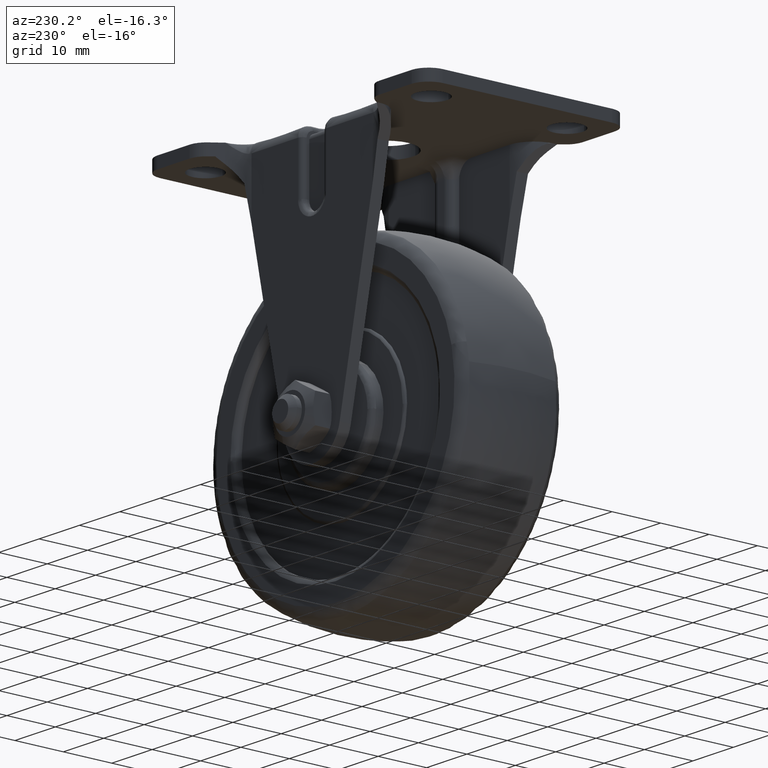
[diagram: clean part render]
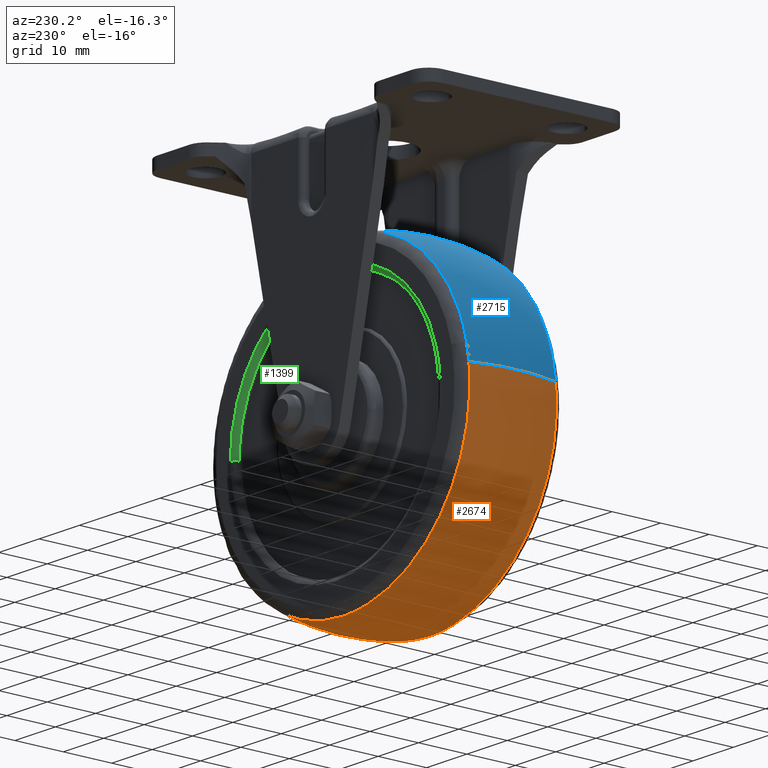
[diagram: same view with three faces highlighted in distinct colors, each labeled with its STEP entity id]
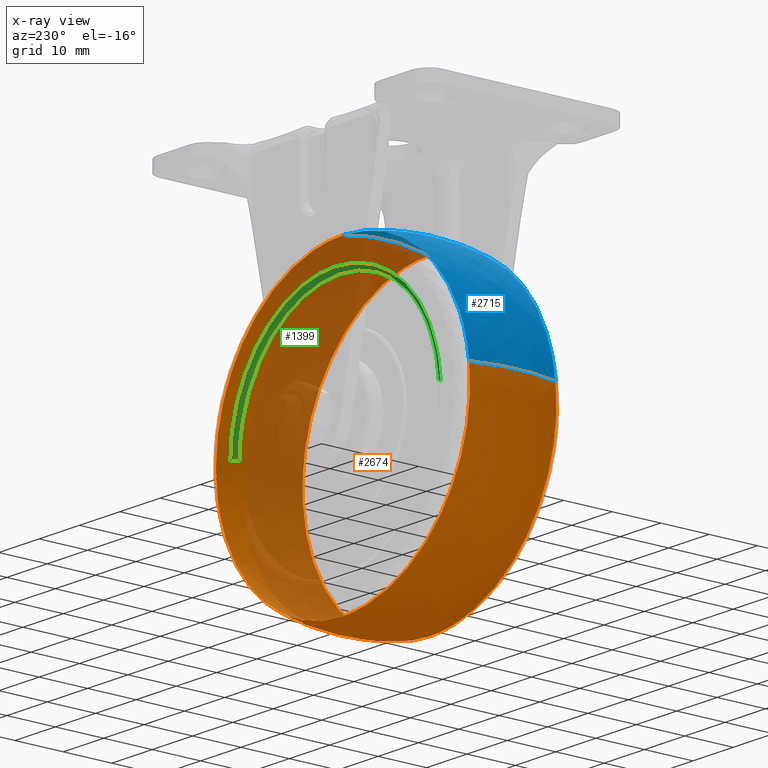
[diagram: x-ray of the same camera — body ghosted, the three highlighted faces saturated]
A machine part, auxiliary view with three faces highlighted in distinct colors.
The next image is the same camera in x-ray (body ghosted, the three faces saturated) — at least one of them is partly hidden behind the body in this view.
Their STEP definitions:

[orange] entity #2674 — the highlighted face is a freeform B-spline surface patch.
#2006=CARTESIAN_POINT('',(9.808425974833607,-8.947369585069662,-29.919763386978222));
#2007=VERTEX_POINT('',#2006);
#2021=CARTESIAN_POINT('',(30.852173017537851,-8.947359003391426,6.288161557330739));
#2022=VERTEX_POINT('',#2021);
#2023=CARTESIAN_POINT('',(9.808425974833607,-8.947369585069662,-29.919763386978222));
#2024=CARTESIAN_POINT('',(31.486465838998317,-8.947367550910025,-22.813174969325587));
#2025=CARTESIAN_POINT('',(31.486465751318740,-8.947360851532991,0.000002213941565));
#2026=CARTESIAN_POINT('',(31.486465739111917,-8.947359918839849,3.176072741140281));
#2027=CARTESIAN_POINT('',(30.852173017537854,-8.947359003391426,6.288161557330739));
#2035=(BOUNDED_CURVE()B_SPLINE_CURVE(2,(#2023,#2024,#2025,#2026,#2027),.UNSPECIFIED.,.F.,.U.)B_SPLINE_CURVE_WITH_KNOTS((3,2,3),(0.052968605850543,0.250000000000000,0.284232948269317),.UNSPECIFIED.)CURVE()GEOMETRIC_REPRESENTATION_ITEM()RATIONAL_B_SPLINE_CURVE((0.902183241288454,0.769163363041054,1.0,0.959893606367701,0.930770893523269))REPRESENTATION_ITEM(''));
#2036=EDGE_CURVE('',#2007,#2022,#2035,.T.);
#2135=CARTESIAN_POINT('',(0.0,-8.947351655797672,31.486470709043729));
#2136=VERTEX_POINT('',#2135);
#2137=CARTESIAN_POINT('',(30.852173017537858,-8.947359003391426,6.288161557330739));
#2138=CARTESIAN_POINT('',(25.716361636839114,-8.947351655797672,31.486470709043733));
#2139=CARTESIAN_POINT('',(0.0,-8.947351655797672,31.486470709043729));
#2147=(BOUNDED_CURVE()B_SPLINE_CURVE(2,(#2137,#2138,#2139),.UNSPECIFIED.,.F.,.U.)B_SPLINE_CURVE_WITH_KNOTS((3,3),(0.284232948269317,0.500000000000000),.UNSPECIFIED.)CURVE()GEOMETRIC_REPRESENTATION_ITEM()RATIONAL_B_SPLINE_CURVE((0.930770893523269,0.747213174818846,1.0))REPRESENTATION_ITEM(''));
#2148=EDGE_CURVE('',#2022,#2136,#2147,.T.);
#2150=CARTESIAN_POINT('',(-31.275877054222850,-8.947368700235634,3.635533780612191));
#2151=VERTEX_POINT('',#2150);
#2165=CARTESIAN_POINT('',(0.0,-8.947370412398071,-31.486466404424799));
#2166=VERTEX_POINT('',#2165);
#2167=CARTESIAN_POINT('',(-31.275877054222853,-8.947368700235634,3.635533780612191));
#2168=CARTESIAN_POINT('',(-31.486466784659083,-8.947368744394128,1.823866159143446));
#2169=CARTESIAN_POINT('',(-31.486466773354930,-8.947368793982973,0.000000042884754));
#2170=CARTESIAN_POINT('',(-31.486466578204652,-8.947369650064191,-31.486466384224485));
#2171=CARTESIAN_POINT('',(0.0,-8.947370412398071,-31.486466404424799));
#2179=(BOUNDED_CURVE()B_SPLINE_CURVE(2,(#2167,#2168,#2169,#2170,#2171),.UNSPECIFIED.,.F.,.U.)B_SPLINE_CURVE_WITH_KNOTS((3,2,3),(0.730000145176667,0.750000000000000,1.0),.UNSPECIFIED.)CURVE()GEOMETRIC_REPRESENTATION_ITEM()RATIONAL_B_SPLINE_CURVE((0.956886403933733,0.976568712579969,1.0,0.707106781186548,1.0))REPRESENTATION_ITEM(''));
#2180=EDGE_CURVE('',#2151,#2166,#2179,.T.);
#2182=CARTESIAN_POINT('',(0.0,-8.947370412398071,-31.486466404424799));
#2183=CARTESIAN_POINT('',(5.029337712449757,-8.947370232056272,-31.486465657545949));
#2184=CARTESIAN_POINT('',(9.808425974833607,-8.947369585069662,-29.919763386978222));
#2192=(BOUNDED_CURVE()B_SPLINE_CURVE(2,(#2182,#2183,#2184),.UNSPECIFIED.,.F.,.U.)B_SPLINE_CURVE_WITH_KNOTS((3,3),(0.0,0.052968605850543),.UNSPECIFIED.)CURVE()GEOMETRIC_REPRESENTATION_ITEM()RATIONAL_B_SPLINE_CURVE((1.0,0.937943418145494,0.902183241288454))REPRESENTATION_ITEM(''));
#2193=EDGE_CURVE('',#2166,#2007,#2192,.T.);
#2222=CARTESIAN_POINT('',(31.038043515660888,8.947361144938633,-5.295023278542990));
#2223=VERTEX_POINT('',#2222);
#2224=CARTESIAN_POINT('',(0.0,8.947351224468196,31.486469048851610));
#2225=VERTEX_POINT('',#2224);
#2226=CARTESIAN_POINT('',(31.038043515660885,8.947361144938633,-5.295023278542990));
#2227=CARTESIAN_POINT('',(31.486463476382202,8.947360235891900,-2.666497923863992));
#2228=CARTESIAN_POINT('',(31.486463476382202,8.947359532322933,0.000002786234707));
#2229=CARTESIAN_POINT('',(31.486463476382205,8.947351224468196,31.486469048851603));
#2230=CARTESIAN_POINT('',(0.0,8.947351224468196,31.486469048851610));
#2238=(BOUNDED_CURVE()B_SPLINE_CURVE(2,(#2226,#2227,#2228,#2229,#2230),.UNSPECIFIED.,.F.,.U.)B_SPLINE_CURVE_WITH_KNOTS((3,2,3),(0.221073261911112,0.250000000000000,0.500000000000000),.UNSPECIFIED.)CURVE()GEOMETRIC_REPRESENTATION_ITEM()RATIONAL_B_SPLINE_CURVE((0.940063003287337,0.966110218285488,1.0,0.707106781186547,1.0))REPRESENTATION_ITEM(''));
#2239=EDGE_CURVE('',#2223,#2225,#2238,.T.);
#2348=CARTESIAN_POINT('',(0.0,8.947367840177670,-31.486463476382202));
#2349=VERTEX_POINT('',#2348);
#2350=CARTESIAN_POINT('',(0.0,8.947367840177670,-31.486463476382202));
#2351=CARTESIAN_POINT('',(26.569837797251992,8.947367840177670,-31.486463476382195));
#2352=CARTESIAN_POINT('',(31.038043515660888,8.947361144938633,-5.295023278542990));
#2360=(BOUNDED_CURVE()B_SPLINE_CURVE(2,(#2350,#2351,#2352),.UNSPECIFIED.,.F.,.U.)B_SPLINE_CURVE_WITH_KNOTS((3,3),(0.0,0.221073261911112),.UNSPECIFIED.)CURVE()GEOMETRIC_REPRESENTATION_ITEM()RATIONAL_B_SPLINE_CURVE((1.0,0.740996562901060,0.940063003287338))REPRESENTATION_ITEM(''));
#2361=EDGE_CURVE('',#2349,#2223,#2360,.T.);
#2363=CARTESIAN_POINT('',(-31.275875446010719,8.947368092683924,3.635533587529015));
#2364=VERTEX_POINT('',#2363);
#2365=CARTESIAN_POINT('',(-31.275875446010723,8.947368092683924,3.635533587529014));
#2366=CARTESIAN_POINT('',(-31.486465122642279,8.947368086171521,1.823866133637960));
#2367=CARTESIAN_POINT('',(-31.486465073699868,8.947368078858260,0.000000185673524));
#2368=CARTESIAN_POINT('',(-31.486464228778395,8.947367952605129,-31.486463388923038));
#2369=CARTESIAN_POINT('',(0.0,8.947367840177670,-31.486463476382202));
#2377=(BOUNDED_CURVE()B_SPLINE_CURVE(2,(#2365,#2366,#2367,#2368,#2369),.UNSPECIFIED.,.F.,.U.)B_SPLINE_CURVE_WITH_KNOTS((3,2,3),(0.730000145209450,0.750000000000000,1.0),.UNSPECIFIED.)CURVE()GEOMETRIC_REPRESENTATION_ITEM()RATIONAL_B_SPLINE_CURVE((0.956886403998258,0.976568712618376,1.0,0.707106781186547,1.0))REPRESENTATION_ITEM(''));
#2378=EDGE_CURVE('',#2364,#2349,#2377,.T.);
#2582=CARTESIAN_POINT('',(-31.058100660806520,-9.854040007855046,3.610245511994428));
#2583=CARTESIAN_POINT('',(-32.282628353075232,-5.004131983858719,3.752586656857317));
#2584=CARTESIAN_POINT('',(-32.282628353075225,-1.377682E-015,3.752586656857317));
#2585=CARTESIAN_POINT('',(-32.282628353075232,5.004131983858716,3.752586656857317));
#2586=CARTESIAN_POINT('',(-31.058100660806520,9.854040007855041,3.610245511994428));
#2587=CARTESIAN_POINT('',(-31.267227080661733,-9.854040007855044,1.811179665331520));
#2588=CARTESIAN_POINT('',(-32.499999999999986,-5.004131983858717,1.882589043519001));
#2589=CARTESIAN_POINT('',(-32.500000000000000,-1.377682E-015,1.882589043519001));
#2590=CARTESIAN_POINT('',(-32.499999999999986,5.004131983858712,1.882589043519001));
#2591=CARTESIAN_POINT('',(-31.267227080661733,9.854040007855039,1.811179665331520));
#2592=CARTESIAN_POINT('',(-31.267227080661733,-9.854040007855046,8.673617E-016));
#2593=CARTESIAN_POINT('',(-32.500000000000000,-5.004131983858718,8.673617E-016));
#2594=CARTESIAN_POINT('',(-32.500000000000000,-1.377682E-015,8.673617E-016));
#2595=CARTESIAN_POINT('',(-32.500000000000000,5.004131983858713,8.673617E-016));
#2596=CARTESIAN_POINT('',(-31.267227080661733,9.854040007855039,8.673617E-016));
#2597=CARTESIAN_POINT('',(-31.267227080661723,-9.854040007855046,-31.267227080661723));
#2598=CARTESIAN_POINT('',(-32.500000000000007,-5.004131983858719,-32.500000000000007));
#2599=CARTESIAN_POINT('',(-32.500000000000007,-1.377682E-015,-32.500000000000007));
#2600=CARTESIAN_POINT('',(-32.500000000000007,5.004131983858713,-32.500000000000007));
#2601=CARTESIAN_POINT('',(-31.267227080661723,9.854040007855037,-31.267227080661723));
#2602=CARTESIAN_POINT('',(0.0,-9.854040007855046,-31.267227080661733));
#2603=CARTESIAN_POINT('',(0.0,-5.004131983858718,-32.500000000000000));
#2604=CARTESIAN_POINT('',(0.0,-1.377682E-015,-32.500000000000000));
#2605=CARTESIAN_POINT('',(0.0,5.004131983858713,-32.500000000000000));
#2606=CARTESIAN_POINT('',(0.0,9.854040007855039,-31.267227080661733));
#2607=CARTESIAN_POINT('',(31.267227080661723,-9.854040007855046,-31.267227080661723));
#2608=CARTESIAN_POINT('',(32.500000000000007,-5.004131983858719,-32.500000000000007));
#2609=CARTESIAN_POINT('',(32.500000000000007,-1.377682E-015,-32.500000000000007));
#2610=CARTESIAN_POINT('',(32.500000000000007,5.004131983858713,-32.500000000000007));
#2611=CARTESIAN_POINT('',(31.267227080661723,9.854040007855037,-31.267227080661723));
#2612=CARTESIAN_POINT('',(31.267227080661733,-9.854040007855046,8.673617E-016));
#2613=CARTESIAN_POINT('',(32.500000000000000,-5.004131983858718,8.673617E-016));
#2614=CARTESIAN_POINT('',(32.500000000000000,-1.377682E-015,8.673617E-016));
#2615=CARTESIAN_POINT('',(32.500000000000000,5.004131983858713,8.673617E-016));
#2616=CARTESIAN_POINT('',(31.267227080661733,9.854040007855039,8.673617E-016));
#2617=CARTESIAN_POINT('',(31.267227080661723,-9.854040007855046,31.267227080661723));
#2618=CARTESIAN_POINT('',(32.500000000000007,-5.004131983858719,32.500000000000007));
#2619=CARTESIAN_POINT('',(32.500000000000007,-1.377682E-015,32.500000000000007));
#2620=CARTESIAN_POINT('',(32.500000000000007,5.004131983858713,32.500000000000007));
#2621=CARTESIAN_POINT('',(31.267227080661723,9.854040007855037,31.267227080661723));
#2622=CARTESIAN_POINT('',(0.0,-9.854040007855046,31.267227080661733));
#2623=CARTESIAN_POINT('',(0.0,-5.004131983858718,32.500000000000000));
#2624=CARTESIAN_POINT('',(0.0,-1.377682E-015,32.500000000000000));
#2625=CARTESIAN_POINT('',(0.0,5.004131983858713,32.500000000000000));
#2626=CARTESIAN_POINT('',(0.0,9.854040007855039,31.267227080661733));
#2634=(BOUNDED_SURFACE()B_SPLINE_SURFACE(2,2,((#2582,#2587,#2592,#2597,#2602,#2607,#2612,#2617,#2622),(#2583,#2588,#2593,#2598,#2603,#2608,#2613,#2618,#2623),(#2584,#2589,#2594,#2599,#2604,#2609,#2614,#2619,#2624),(#2585,#2590,#2595,#2600,#2605,#2610,#2615,#2620,#2625),(#2586,#2591,#2596,#2601,#2606,#2611,#2616,#2621,#2626)),.UNSPECIFIED.,.F.,.F.,.U.)B_SPLINE_SURFACE_WITH_KNOTS((3,2,3),(3,2,2,2,3),(0.0,10.297823504314341,20.595647008628688),(0.0,4.307820149998688,58.155583258501053,112.003346367003400,165.851109475505810),.UNSPECIFIED.)GEOMETRIC_REPRESENTATION_ITEM()RATIONAL_B_SPLINE_SURFACE(((0.889902531509334,0.908207150808650,0.929998363394312,0.657608149248509,0.929998363394312,0.657608149248509,0.929998363394312,0.657608149248509,0.929998363394312),(0.915649230984031,0.934483440340023,0.956905117253819,0.676634097362284,0.956905117253819,0.676634097362284,0.956905117253819,0.676634097362284,0.956905117253819),(0.956886126402807,0.976568547383107,1.0,0.707106781186548,1.0,0.707106781186548,1.0,0.707106781186548,1.0),(0.915649230984031,0.934483440340023,0.956905117253819,0.676634097362284,0.956905117253819,0.676634097362284,0.956905117253819,0.676634097362284,0.956905117253819),(0.889902531509334,0.908207150808650,0.929998363394312,0.657608149248509,0.929998363394312,0.657608149248509,0.929998363394312,0.657608149248509,0.929998363394312)))REPRESENTATION_ITEM('')SURFACE());
#2635=ORIENTED_EDGE('',*,*,#2180,.F.);
#2636=CARTESIAN_POINT('',(-31.275877054222853,-8.947368700235634,3.635533780612191));
#2637=CARTESIAN_POINT('',(-32.282630971199097,-4.531089565049695,3.752560561635541));
#2638=CARTESIAN_POINT('',(-32.282630551055995,-0.000000191765367,3.752560511242225));
#2639=CARTESIAN_POINT('',(-32.282630130912906,4.531089065121877,3.752560460848909));
#2640=CARTESIAN_POINT('',(-31.275875446010723,8.947368092683924,3.635533587529014));
#2648=(BOUNDED_CURVE()B_SPLINE_CURVE(2,(#2636,#2637,#2638,#2639,#2640),.UNSPECIFIED.,.F.,.U.)B_SPLINE_CURVE_WITH_KNOTS((3,2,3),(0.414619700729478,0.500000000000000,0.585380297163161),.UNSPECIFIED.)CURVE()GEOMETRIC_REPRESENTATION_ITEM()RATIONAL_B_SPLINE_CURVE((0.894707280897751,0.919394630700128,0.956886118190660,0.919394631625495,0.894707282116420))REPRESENTATION_ITEM(''));
#2649=EDGE_CURVE('',#2151,#2364,#2648,.T.);
#2650=ORIENTED_EDGE('',*,*,#2649,.T.);
#2651=ORIENTED_EDGE('',*,*,#2378,.T.);
#2652=ORIENTED_EDGE('',*,*,#2361,.T.);
#2653=ORIENTED_EDGE('',*,*,#2239,.T.);
#2654=CARTESIAN_POINT('',(0.0,-8.947351655797672,31.486470709043729));
#2655=CARTESIAN_POINT('',(0.0,-4.531080709080801,32.499999587565931));
#2656=CARTESIAN_POINT('',(0.0,-0.000000191764916,32.499999164414447));
#2657=CARTESIAN_POINT('',(0.0,4.531080300715177,32.499998741262971));
#2658=CARTESIAN_POINT('',(0.0,8.947351224468196,31.486469048851607));
#2666=(BOUNDED_CURVE()B_SPLINE_CURVE(2,(#2654,#2655,#2656,#2657,#2658),.UNSPECIFIED.,.F.,.U.)B_SPLINE_CURVE_WITH_KNOTS((3,2,3),(0.414619861066181,0.500000000000000,0.585380138484169),.UNSPECIFIED.)CURVE()GEOMETRIC_REPRESENTATION_ITEM()RATIONAL_B_SPLINE_CURVE((0.935019702564935,0.960819353137130,1.0,0.960819353343473,0.935019702836680))REPRESENTATION_ITEM(''));
#2667=EDGE_CURVE('',#2136,#2225,#2666,.T.);
#2668=ORIENTED_EDGE('',*,*,#2667,.F.);
#2669=ORIENTED_EDGE('',*,*,#2148,.F.);
#2670=ORIENTED_EDGE('',*,*,#2036,.F.);
#2671=ORIENTED_EDGE('',*,*,#2193,.F.);
#2672=EDGE_LOOP('',(#2635,#2650,#2651,#2652,#2653,#2668,#2669,#2670,#2671));
#2673=FACE_OUTER_BOUND('',#2672,.T.);
#2674=ADVANCED_FACE('',(#2673),#2634,.T.);

[blue] entity #2715 — the highlighted face is a freeform B-spline surface patch.
#2135=CARTESIAN_POINT('',(0.0,-8.947351655797672,31.486470709043729));
#2136=VERTEX_POINT('',#2135);
#2150=CARTESIAN_POINT('',(-31.275877054222850,-8.947368700235634,3.635533780612191));
#2151=VERTEX_POINT('',#2150);
#2152=CARTESIAN_POINT('',(0.0,-8.947351655797672,31.486470709043729));
#2153=CARTESIAN_POINT('',(-28.038461442557708,-8.947360178016652,31.486468579418702));
#2154=CARTESIAN_POINT('',(-31.275877054222853,-8.947368700235634,3.635533780612191));
#2162=(BOUNDED_CURVE()B_SPLINE_CURVE(2,(#2152,#2153,#2154),.UNSPECIFIED.,.F.,.U.)B_SPLINE_CURVE_WITH_KNOTS((3,3),(0.500000000000000,0.730000145176667),.UNSPECIFIED.)CURVE()GEOMETRIC_REPRESENTATION_ITEM()RATIONAL_B_SPLINE_CURVE((1.0,0.730538068606579,0.956886403933733))REPRESENTATION_ITEM(''));
#2163=EDGE_CURVE('',#2136,#2151,#2162,.T.);
#2224=CARTESIAN_POINT('',(0.0,8.947351224468196,31.486469048851610));
#2225=VERTEX_POINT('',#2224);
#2288=CARTESIAN_POINT('',(-30.684405726760541,8.947366836976620,7.061493339797949));
#2289=VERTEX_POINT('',#2288);
#2303=CARTESIAN_POINT('',(0.0,8.947351224468196,31.486469048851610));
#2304=CARTESIAN_POINT('',(-25.063414783277910,8.947358763667840,31.486466646045969));
#2305=CARTESIAN_POINT('',(-30.684405726760538,8.947366836976620,7.061493339797949));
#2313=(BOUNDED_CURVE()B_SPLINE_CURVE(2,(#2303,#2304,#2305),.UNSPECIFIED.,.F.,.U.)B_SPLINE_CURVE_WITH_KNOTS((3,3),(0.500000000000000,0.711647088537850),.UNSPECIFIED.)CURVE()GEOMETRIC_REPRESENTATION_ITEM()RATIONAL_B_SPLINE_CURVE((1.0,0.752040011942614,0.923920100255034))REPRESENTATION_ITEM(''));
#2314=EDGE_CURVE('',#2225,#2289,#2313,.T.);
#2363=CARTESIAN_POINT('',(-31.275875446010719,8.947368092683924,3.635533587529015));
#2364=VERTEX_POINT('',#2363);
#2380=CARTESIAN_POINT('',(-30.684405726760534,8.947366836976620,7.061493339797950));
#2381=CARTESIAN_POINT('',(-31.074856439788025,8.947367568989716,5.364865531655809));
#2382=CARTESIAN_POINT('',(-31.275875446010723,8.947368092683924,3.635533587529014));
#2390=(BOUNDED_CURVE()B_SPLINE_CURVE(2,(#2380,#2381,#2382),.UNSPECIFIED.,.F.,.U.)B_SPLINE_CURVE_WITH_KNOTS((3,3),(0.711647088537849,0.730000145209450),.UNSPECIFIED.)CURVE()GEOMETRIC_REPRESENTATION_ITEM()RATIONAL_B_SPLINE_CURVE((0.923920100255033,0.938824746585443,0.956886403998258))REPRESENTATION_ITEM(''));
#2391=EDGE_CURVE('',#2289,#2364,#2390,.T.);
#2636=CARTESIAN_POINT('',(-31.275877054222853,-8.947368700235634,3.635533780612191));
#2637=CARTESIAN_POINT('',(-32.282630971199097,-4.531089565049695,3.752560561635541));
#2638=CARTESIAN_POINT('',(-32.282630551055995,-0.000000191765367,3.752560511242225));
#2639=CARTESIAN_POINT('',(-32.282630130912906,4.531089065121877,3.752560460848909));
#2640=CARTESIAN_POINT('',(-31.275875446010723,8.947368092683924,3.635533587529014));
#2648=(BOUNDED_CURVE()B_SPLINE_CURVE(2,(#2636,#2637,#2638,#2639,#2640),.UNSPECIFIED.,.F.,.U.)B_SPLINE_CURVE_WITH_KNOTS((3,2,3),(0.414619700729478,0.500000000000000,0.585380297163161),.UNSPECIFIED.)CURVE()GEOMETRIC_REPRESENTATION_ITEM()RATIONAL_B_SPLINE_CURVE((0.894707280897751,0.919394630700128,0.956886118190660,0.919394631625495,0.894707282116420))REPRESENTATION_ITEM(''));
#2649=EDGE_CURVE('',#2151,#2364,#2648,.T.);
#2654=CARTESIAN_POINT('',(0.0,-8.947351655797672,31.486470709043729));
#2655=CARTESIAN_POINT('',(0.0,-4.531080709080801,32.499999587565931));
#2656=CARTESIAN_POINT('',(0.0,-0.000000191764916,32.499999164414447));
#2657=CARTESIAN_POINT('',(0.0,4.531080300715177,32.499998741262971));
#2658=CARTESIAN_POINT('',(0.0,8.947351224468196,31.486469048851607));
#2666=(BOUNDED_CURVE()B_SPLINE_CURVE(2,(#2654,#2655,#2656,#2657,#2658),.UNSPECIFIED.,.F.,.U.)B_SPLINE_CURVE_WITH_KNOTS((3,2,3),(0.414619861066181,0.500000000000000,0.585380138484169),.UNSPECIFIED.)CURVE()GEOMETRIC_REPRESENTATION_ITEM()RATIONAL_B_SPLINE_CURVE((0.935019702564935,0.960819353137130,1.0,0.960819353343473,0.935019702836680))REPRESENTATION_ITEM(''));
#2667=EDGE_CURVE('',#2136,#2225,#2666,.T.);
#2675=CARTESIAN_POINT('',(0.202858770560689,-9.854036682347338,31.267227925955101));
#2676=CARTESIAN_POINT('',(0.210856877329684,-5.004130241379370,32.499999999999993));
#2677=CARTESIAN_POINT('',(0.210856877329684,-1.377682E-015,32.500000000000014));
#2678=CARTESIAN_POINT('',(0.210856877329684,5.004131900962531,32.499999999999993));
#2679=CARTESIAN_POINT('',(0.202858765337410,9.854039849648354,31.267227120875461));
#2680=CARTESIAN_POINT('',(0.101565858196324,-9.854036682347338,31.267227925955105));
#2681=CARTESIAN_POINT('',(0.105570292294459,-5.004130241379370,32.500000000000007));
#2682=CARTESIAN_POINT('',(0.105570292294459,-1.377682E-015,32.500000000000007));
#2683=CARTESIAN_POINT('',(0.105570292294459,5.004131900962532,32.500000000000000));
#2684=CARTESIAN_POINT('',(0.101565855581171,9.854039849648354,31.267227120875461));
#2685=CARTESIAN_POINT('',(-27.843206975927465,-9.854036682347338,31.267227925955101));
#2686=CARTESIAN_POINT('',(-28.940980276875674,-5.004130241379370,32.500000000000000));
#2687=CARTESIAN_POINT('',(-28.940980276875663,-1.377682E-015,32.500000000000000));
#2688=CARTESIAN_POINT('',(-28.940980276875667,5.004131900962533,32.500000000000007));
#2689=CARTESIAN_POINT('',(-27.843206259010739,9.854039849648354,31.267227120875461));
#2690=CARTESIAN_POINT('',(-31.070360582424144,-9.854036682347338,3.504783607377183));
#2691=CARTESIAN_POINT('',(-32.295370773516993,-5.004130241379370,3.642966607385263));
#2692=CARTESIAN_POINT('',(-32.295370773516993,-1.377682E-015,3.642966607385264));
#2693=CARTESIAN_POINT('',(-32.295370773516979,5.004131900962534,3.642966607385263));
#2694=CARTESIAN_POINT('',(-31.070359782413522,9.854039849648357,3.504783517134775));
#2695=CARTESIAN_POINT('',(-31.082590819605898,-9.854036682347340,3.399569750163261));
#2696=CARTESIAN_POINT('',(-32.308083211899707,-5.004130241379370,3.533604486523440));
#2697=CARTESIAN_POINT('',(-32.308083211899699,-1.377682E-015,3.533604486523441));
#2698=CARTESIAN_POINT('',(-32.308083211899699,5.004131900962534,3.533604486523441));
#2699=CARTESIAN_POINT('',(-31.082590019280357,9.854039849648357,3.399569662629937));
#2707=(BOUNDED_SURFACE()B_SPLINE_SURFACE(2,2,((#2675,#2680,#2685,#2690,#2695),(#2676,#2681,#2686,#2691,#2696),(#2677,#2682,#2687,#2692,#2697),(#2678,#2683,#2688,#2693,#2698),(#2679,#2684,#2689,#2694,#2699)),.UNSPECIFIED.,.F.,.F.,.U.)B_SPLINE_SURFACE_WITH_KNOTS((3,2,3),(3,1,1,3),(0.0,10.297820063612040,20.595643395243229),(0.0,0.247428168587893,49.733031749753479,49.980491160844629),.UNSPECIFIED.)GEOMETRIC_REPRESENTATION_ITEM()RATIONAL_B_SPLINE_SURFACE(((0.932504372869679,0.931251377097384,0.679399379479292,0.890955190378671,0.892007839727581),(0.959483626605106,0.958194379109116,0.699055789443629,0.916732341507893,0.917815446149780),(1.002694619254088,1.001347309627044,0.730538238691624,0.958018001181047,0.959149884171434),(0.959483612892073,0.958194365414508,0.699055779452656,0.916732328405865,0.917815433032272),(0.932504355745917,0.931251359996631,0.679399367003347,0.890955174017885,0.892007823347465)))REPRESENTATION_ITEM('')SURFACE());
#2708=ORIENTED_EDGE('',*,*,#2163,.F.);
#2709=ORIENTED_EDGE('',*,*,#2667,.T.);
#2710=ORIENTED_EDGE('',*,*,#2314,.T.);
#2711=ORIENTED_EDGE('',*,*,#2391,.T.);
#2712=ORIENTED_EDGE('',*,*,#2649,.F.);
#2713=EDGE_LOOP('',(#2708,#2709,#2710,#2711,#2712));
#2714=FACE_OUTER_BOUND('',#2713,.T.);
#2715=ADVANCED_FACE('',(#2714),#2707,.T.);

[green] entity #1399 — the highlighted face is a freeform B-spline surface patch.
#593=CARTESIAN_POINT('',(-24.939141846007519,9.500000002004308,1.743331289433213));
#594=VERTEX_POINT('',#593);
#610=CARTESIAN_POINT('',(0.0,9.500000000000000,25.0));
#611=VERTEX_POINT('',#610);
#612=CARTESIAN_POINT('',(-24.939141846007519,9.500000002004308,1.743331289433213));
#613=CARTESIAN_POINT('',(-23.313421181577112,9.500000000000000,25.000000000000007));
#614=CARTESIAN_POINT('',(0.0,9.500000000000000,25.0));
#622=(BOUNDED_CURVE()B_SPLINE_CURVE(2,(#612,#613,#614),.UNSPECIFIED.,.F.,.U.)B_SPLINE_CURVE_WITH_KNOTS((3,3),(0.262166313465516,0.500000000000000),.UNSPECIFIED.)CURVE()GEOMETRIC_REPRESENTATION_ITEM()RATIONAL_B_SPLINE_CURVE((0.972879876385691,0.721360504034581,1.0))REPRESENTATION_ITEM(''));
#623=EDGE_CURVE('',#594,#611,#622,.T.);
#625=CARTESIAN_POINT('',(24.998026105094969,9.500000001999544,-0.314150997118308));
#626=VERTEX_POINT('',#625);
#627=CARTESIAN_POINT('',(0.0,9.500000000000000,25.0));
#628=CARTESIAN_POINT('',(25.000000000000004,9.500000000000000,25.000000000000004));
#629=CARTESIAN_POINT('',(25.0,9.500000000000000,1.211545E-015));
#630=CARTESIAN_POINT('',(25.0,9.500000000000000,-0.157081699831772));
#631=CARTESIAN_POINT('',(24.998026105094961,9.500000001999544,-0.314150997118308));
#639=(BOUNDED_CURVE()B_SPLINE_CURVE(2,(#627,#628,#629,#630,#631),.UNSPECIFIED.,.F.,.U.)B_SPLINE_CURVE_WITH_KNOTS((3,2,3),(0.500000000000000,0.750000000000000,0.752215704078758),.UNSPECIFIED.)CURVE()GEOMETRIC_REPRESENTATION_ITEM()RATIONAL_B_SPLINE_CURVE((1.0,0.707106781186547,1.0,0.997404141201738,0.994854295642894))REPRESENTATION_ITEM(''));
#640=EDGE_CURVE('',#611,#626,#639,.T.);
#1273=CARTESIAN_POINT('',(-25.936706568497669,10.499999999996740,1.813052262683195));
#1274=VERTEX_POINT('',#1273);
#1292=CARTESIAN_POINT('',(-24.939141846007519,9.500000002004308,1.743331289433213));
#1293=CARTESIAN_POINT('',(-24.939142274754932,10.499998193756744,1.743325213492712));
#1294=CARTESIAN_POINT('',(-25.936706568497677,10.499999999996740,1.813052262683195));
#1302=(BOUNDED_CURVE()B_SPLINE_CURVE(2,(#1292,#1293,#1294),.UNSPECIFIED.,.F.,.U.)B_SPLINE_CURVE_WITH_KNOTS((3,3),(-1.725134639170998,-0.274867207984509),.UNSPECIFIED.)CURVE()GEOMETRIC_REPRESENTATION_ITEM()RATIONAL_B_SPLINE_CURVE((0.863472073938974,0.610567283411080,0.863471429707611))REPRESENTATION_ITEM(''));
#1303=EDGE_CURVE('',#594,#1274,#1302,.T.);
#1309=CARTESIAN_POINT('',(25.997947148812251,10.500000000000000,-0.326717037013222));
#1310=VERTEX_POINT('',#1309);
#1311=CARTESIAN_POINT('',(24.998026105094965,9.500000001999544,-0.314150997118308));
#1312=CARTESIAN_POINT('',(24.998026109094170,10.499999999027304,-0.314150997134067));
#1313=CARTESIAN_POINT('',(25.997947148812248,10.500000000000000,-0.326717037013222));
#1321=(BOUNDED_CURVE()B_SPLINE_CURVE(2,(#1311,#1312,#1313),.UNSPECIFIED.,.F.,.U.)B_SPLINE_CURVE_WITH_KNOTS((3,3),(-1.725134639180771,-0.274865357715681),.UNSPECIFIED.)CURVE()GEOMETRIC_REPRESENTATION_ITEM()RATIONAL_B_SPLINE_CURVE((0.883342148189825,0.624617225037149,0.883342149297158))REPRESENTATION_ITEM(''));
#1322=EDGE_CURVE('',#626,#1310,#1321,.T.);
#1340=CARTESIAN_POINT('',(25.000446550340470,9.430462864192879,-0.314181414896963));
#1341=CARTESIAN_POINT('',(25.314627965237431,9.430462864192878,24.686265135443499));
#1342=CARTESIAN_POINT('',(0.314181414896965,9.430462864192879,25.000446550340470));
#1343=CARTESIAN_POINT('',(-23.295076283972548,9.430462864192878,25.297144850251311));
#1344=CARTESIAN_POINT('',(-24.941556589760708,9.430462864192878,1.743500088230904));
#1345=CARTESIAN_POINT('',(24.920495007065213,10.577537827670646,-0.313176661284309));
#1346=CARTESIAN_POINT('',(25.233671668349512,10.577537827670646,24.607318345780897));
#1347=CARTESIAN_POINT('',(0.313176661284311,10.577537827670646,24.920495007065213));
#1348=CARTESIAN_POINT('',(-23.220578522667839,10.577537827670643,25.216244464445694));
#1349=CARTESIAN_POINT('',(-24.861793376850763,10.577537827670646,1.737924366914329));
#1350=CARTESIAN_POINT('',(26.067479357240796,10.497579324419242,-0.327590850457979));
#1351=CARTESIAN_POINT('',(26.395070207698776,10.497579324419243,25.739888506782815));
#1352=CARTESIAN_POINT('',(0.327590850457982,10.497579324419242,26.067479357240796));
#1353=CARTESIAN_POINT('',(-24.289322950094839,10.497579324419242,26.376840903750807));
#1354=CARTESIAN_POINT('',(-26.006075940758997,10.497579324419242,1.817913630774232));
#1362=(BOUNDED_SURFACE()B_SPLINE_SURFACE(2,2,((#1340,#1345,#1350),(#1341,#1346,#1351),(#1342,#1347,#1352),(#1343,#1348,#1353),(#1344,#1349,#1354)),.UNSPECIFIED.,.F.,.F.,.U.)B_SPLINE_SURFACE_WITH_KNOTS((3,2,3),(3,3),(0.0,43.193424317806219,84.659111662900187),(0.0,1.822374657191437),.UNSPECIFIED.)GEOMETRIC_REPRESENTATION_ITEM()RATIONAL_B_SPLINE_SURFACE(((0.910479806190716,0.597479450633811,0.910480040103029),(0.643806445090869,0.422481771162781,0.643806610491851),(0.910479806190716,0.597479450633811,0.910480040103029),(0.654473379534863,0.429481678341622,0.654473547676298),(0.889999292058248,0.584039628850436,0.889999520708890)))REPRESENTATION_ITEM('')SURFACE());
#1363=CARTESIAN_POINT('',(0.0,10.500000000000000,26.0));
#1364=VERTEX_POINT('',#1363);
#1365=CARTESIAN_POINT('',(0.0,10.500000000000000,26.0));
#1366=CARTESIAN_POINT('',(-24.245968516443650,10.499999999998369,25.999999937057826));
#1367=CARTESIAN_POINT('',(-25.936706568497669,10.499999999996744,1.813052262683195));
#1375=(BOUNDED_CURVE()B_SPLINE_CURVE(2,(#1365,#1366,#1367),.UNSPECIFIED.,.F.,.U.)B_SPLINE_CURVE_WITH_KNOTS((3,3),(0.500000000000000,0.737833767115876),.UNSPECIFIED.)CURVE()GEOMETRIC_REPRESENTATION_ITEM()RATIONAL_B_SPLINE_CURVE((1.0,0.721360409627609,0.972880046822340))REPRESENTATION_ITEM(''));
#1376=EDGE_CURVE('',#1364,#1274,#1375,.T.);
#1377=ORIENTED_EDGE('',*,*,#1376,.F.);
#1378=CARTESIAN_POINT('',(25.997947148812251,10.499999999999996,-0.326717037013222));
#1379=CARTESIAN_POINT('',(26.000000000000004,10.500000000000004,-0.163364967841305));
#1380=CARTESIAN_POINT('',(26.0,10.500000000000000,1.211545E-015));
#1381=CARTESIAN_POINT('',(26.000000000000007,10.500000000000000,26.000000000000007));
#1382=CARTESIAN_POINT('',(0.0,10.500000000000000,26.0));
#1390=(BOUNDED_CURVE()B_SPLINE_CURVE(2,(#1378,#1379,#1380,#1381,#1382),.UNSPECIFIED.,.F.,.U.)B_SPLINE_CURVE_WITH_KNOTS((3,2,3),(0.247784295921022,0.250000000000000,0.500000000000000),.UNSPECIFIED.)CURVE()GEOMETRIC_REPRESENTATION_ITEM()RATIONAL_B_SPLINE_CURVE((0.994854295642388,0.997404141201481,1.0,0.707106781186547,1.0))REPRESENTATION_ITEM(''));
#1391=EDGE_CURVE('',#1310,#1364,#1390,.T.);
#1392=ORIENTED_EDGE('',*,*,#1391,.F.);
#1393=ORIENTED_EDGE('',*,*,#1322,.F.);
#1394=ORIENTED_EDGE('',*,*,#640,.F.);
#1395=ORIENTED_EDGE('',*,*,#623,.F.);
#1396=ORIENTED_EDGE('',*,*,#1303,.T.);
#1397=EDGE_LOOP('',(#1377,#1392,#1393,#1394,#1395,#1396));
#1398=FACE_OUTER_BOUND('',#1397,.T.);
#1399=ADVANCED_FACE('',(#1398),#1362,.T.);